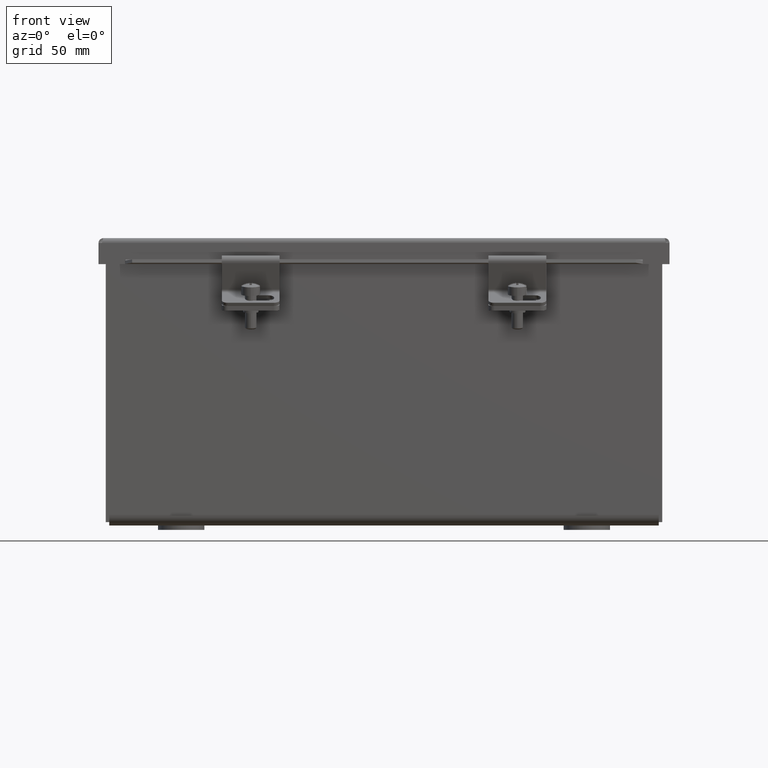
[diagram: clean part render]
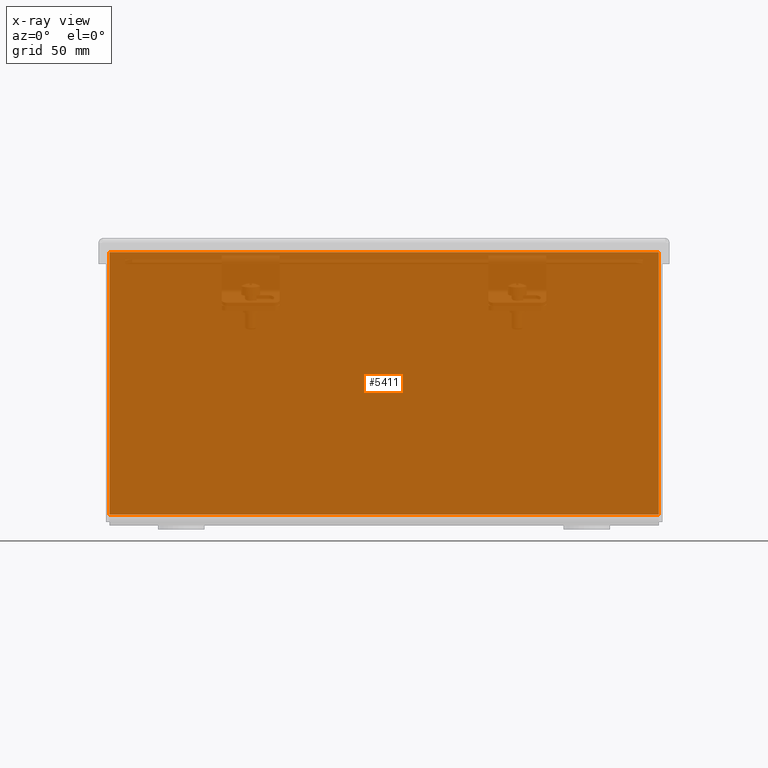
[diagram: x-ray — body ghosted, one internal face saturated and labeled with its STEP entity id]
A machine part, front view, then the same camera in x-ray: the body is ghosted and one INTERNAL B-rep face — a face not visible from any outside direction — is saturated and labeled: STEP entity #5411.
In plain terms, the highlighted planar face has unit normal (0, -1, 0).
Its self-contained STEP definition (entity closure, byte-faithful):
#206=PLANE('',#5914);
#414=FACE_OUTER_BOUND('',#714,.T.);
#714=EDGE_LOOP('',(#3673,#3674,#3675,#3676));
#1254=LINE('',#8021,#1822);
#1255=LINE('',#8024,#1823);
#1258=LINE('',#8030,#1826);
#1259=LINE('',#8031,#1827);
#1822=VECTOR('',#6467,0.393700787401575);
#1823=VECTOR('',#6470,0.18881);
#1826=VECTOR('',#6475,0.18881);
#1827=VECTOR('',#6476,0.393700787401575);
#2380=VERTEX_POINT('',#8006);
#2381=VERTEX_POINT('',#8010);
#2383=VERTEX_POINT('',#8023);
#2385=VERTEX_POINT('',#8029);
#2878=EDGE_CURVE('',#2380,#2381,#1254,.T.);
#2879=EDGE_CURVE('',#2380,#2383,#1255,.T.);
#2882=EDGE_CURVE('',#2381,#2385,#1258,.T.);
#2883=EDGE_CURVE('',#2385,#2383,#1259,.T.);
#3673=ORIENTED_EDGE('',*,*,#2878,.T.);
#3674=ORIENTED_EDGE('',*,*,#2882,.T.);
#3675=ORIENTED_EDGE('',*,*,#2883,.T.);
#3676=ORIENTED_EDGE('',*,*,#2879,.F.);
#5411=ADVANCED_FACE('',(#414),#206,.T.);
#5914=AXIS2_PLACEMENT_3D('',#8028,#6473,#6474);
#6467=DIRECTION('',(-1.,-1.17974956985578E-16,1.18014358146819E-16));
#6470=DIRECTION('',(6.35316057827913E-31,-5.32907051820075E-15,-1.));
#6473=DIRECTION('center_axis',(1.17974956985579E-16,-1.,5.39202780811649E-15));
#6474=DIRECTION('ref_axis',(1.,1.17974956985578E-16,-1.18014358146819E-16));
#6475=DIRECTION('',(6.35316057827913E-31,-5.32907051820075E-15,-1.));
#6476=DIRECTION('',(1.,1.17974956985579E-16,2.12384192048111E-34));
#8006=CARTESIAN_POINT('',(11.852,5.92600000000003,5.89475));
#8010=CARTESIAN_POINT('',(-2.11235881645478E-15,5.92600000000003,5.89475));
#8021=CARTESIAN_POINT('',(2.963,5.92600000000003,5.89475));
#8023=CARTESIAN_POINT('',(11.852,5.926,0.23025));
#8024=CARTESIAN_POINT('',(11.852,5.926,-0.362914108924288));
#8028=CARTESIAN_POINT('Origin',(5.926,5.92600000000002,2.96683397276893));
#8029=CARTESIAN_POINT('',(-2.10776594009173E-15,5.926,0.23025));
#8030=CARTESIAN_POINT('',(-2.10776594009173E-15,5.926,-0.362914108924288));
#8031=CARTESIAN_POINT('',(5.926,5.926,0.23025));